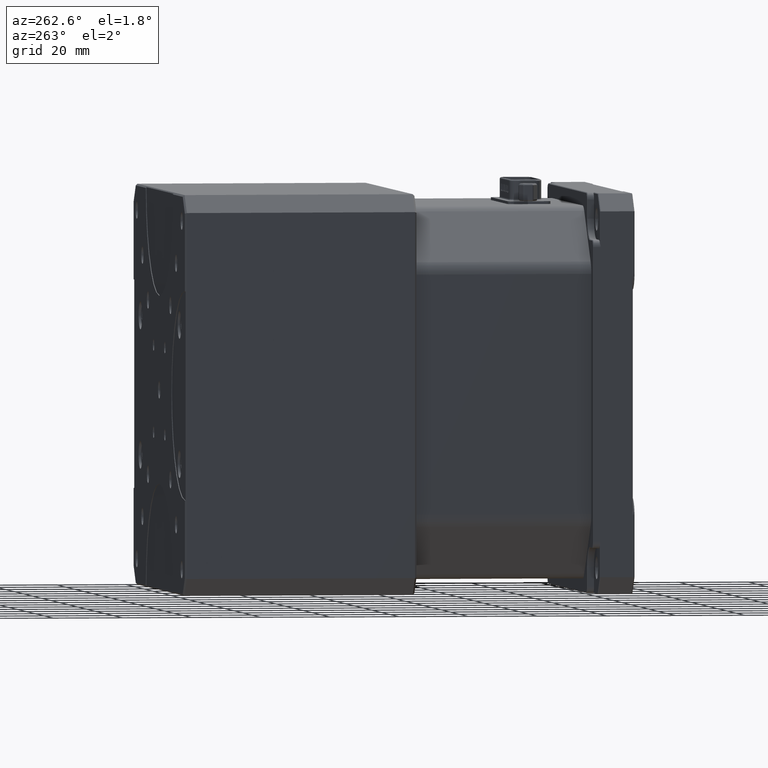
[diagram: clean part render]
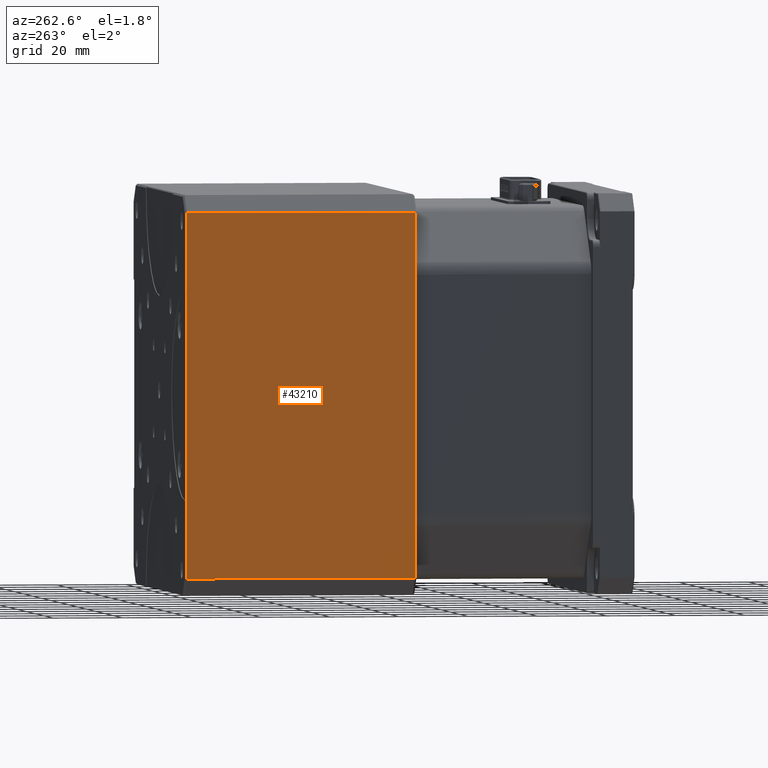
[diagram: same view with one face highlighted and labeled with its STEP entity id]
A machine part, auxiliary view. The second image highlights one B-rep face of the part: STEP entity #43210.
In plain terms, the highlighted planar face has unit normal (1, 0, -0).
Its self-contained STEP definition (entity closure, byte-faithful):
#331 = CARTESIAN_POINT ( 'NONE',  ( -88.44322036876801008, 62.99999999999870681, -106.0000000000000000 ) ) ;
#803 = DIRECTION ( 'NONE',  ( -5.683276733161789931E-16, 0.000000000000000000, -1.000000000000000000 ) ) ;
#1086 = DIRECTION ( 'NONE',  ( 6.258044153213320239E-15, -1.000000000000000000, 6.258044153213300517E-15 ) ) ;
#2309 = VERTEX_POINT ( 'NONE', #7570 ) ;
#3343 = EDGE_CURVE ( 'NONE', #46946, #37126, #12664, .T. ) ;
#5724 = EDGE_LOOP ( 'NONE', ( #44789, #15838, #11801, #19067 ) ) ;
#6143 = CARTESIAN_POINT ( 'NONE',  ( -88.44322036876809534, 129.5000000000000000, -1.000000000001183942 ) ) ;
#7570 = CARTESIAN_POINT ( 'NONE',  ( -88.44322036876819482, 63.49999999999880629, -106.0000000000000000 ) ) ;
#10194 = EDGE_CURVE ( 'NONE', #29359, #37126, #15126, .T. ) ;
#11439 = VECTOR ( 'NONE', #26370, 1000.000000000000000 ) ;
#11801 = ORIENTED_EDGE ( 'NONE', *, *, #10194, .F. ) ;
#12664 = LINE ( 'NONE', #24429, #19460 ) ;
#13690 = CARTESIAN_POINT ( 'NONE',  ( -88.44322036876801008, 63.49999999999911182, -53.50000000000059686 ) ) ;
#14690 = LINE ( 'NONE', #13690, #38295 ) ;
#15126 = LINE ( 'NONE', #30195, #11439 ) ;
#15153 = CARTESIAN_POINT ( 'NONE',  ( -88.44322036876809534, 63.50000000000000000, -1.000000000000593969 ) ) ;
#15767 = DIRECTION ( 'NONE',  ( 5.868647224029619957E-15, 1.000000000000000000, -5.868647224029640468E-15 ) ) ;
#15838 = ORIENTED_EDGE ( 'NONE', *, *, #3343, .T. ) ;
#19067 = ORIENTED_EDGE ( 'NONE', *, *, #36623, .T. ) ;
#19129 = VECTOR ( 'NONE', #1086, 1000.000000000000000 ) ;
#19460 = VECTOR ( 'NONE', #15767, 1000.000000000000000 ) ;
#24075 = CARTESIAN_POINT ( 'NONE',  ( -88.44322036876829429, 62.99999999999870681, -111.0000000000000000 ) ) ;
#24100 = LINE ( 'NONE', #331, #19129 ) ;
#24429 = CARTESIAN_POINT ( 'NONE',  ( -88.44322036876829429, 63.00000000000000000, -1.000000000000585976 ) ) ;
#26370 = DIRECTION ( 'NONE',  ( 5.683276733161789931E-16, 0.000000000000000000, 1.000000000000000000 ) ) ;
#27409 = PLANE ( 'NONE',  #36429 ) ;
#29359 = VERTEX_POINT ( 'NONE', #41401 ) ;
#29662 = EDGE_CURVE ( 'NONE', #2309, #46946, #14690, .T. ) ;
#30195 = CARTESIAN_POINT ( 'NONE',  ( -88.44322036876839377, 129.4999999999987779, -111.0000000000000000 ) ) ;
#31987 = DIRECTION ( 'NONE',  ( 1.000000000000000000, 3.893969291836995418E-16, -5.683276733161789931E-16 ) ) ;
#36429 = AXIS2_PLACEMENT_3D ( 'NONE', #24075, #31987, #803 ) ;
#36623 = EDGE_CURVE ( 'NONE', #29359, #2309, #24100, .T. ) ;
#36950 = DIRECTION ( 'NONE',  ( 6.347509101302180425E-15, 6.347509101302180425E-15, 1.000000000000000000 ) ) ;
#37126 = VERTEX_POINT ( 'NONE', #6143 ) ;
#38295 = VECTOR ( 'NONE', #36950, 1000.000000000000000 ) ;
#41401 = CARTESIAN_POINT ( 'NONE',  ( -88.44322036876839377, 129.4999999999985789, -106.0000000000013927 ) ) ;
#43210 = ADVANCED_FACE ( 'NONE', ( #46595 ), #27409, .F. ) ;
#44789 = ORIENTED_EDGE ( 'NONE', *, *, #29662, .T. ) ;
#46595 = FACE_OUTER_BOUND ( 'NONE', #5724, .T. ) ;
#46946 = VERTEX_POINT ( 'NONE', #15153 ) ;